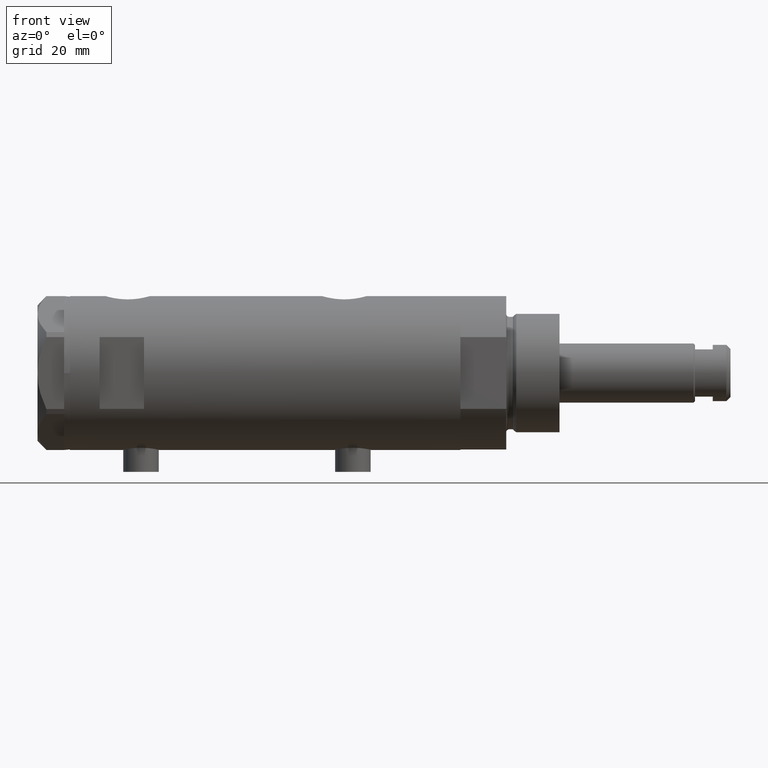
[diagram: clean part render]
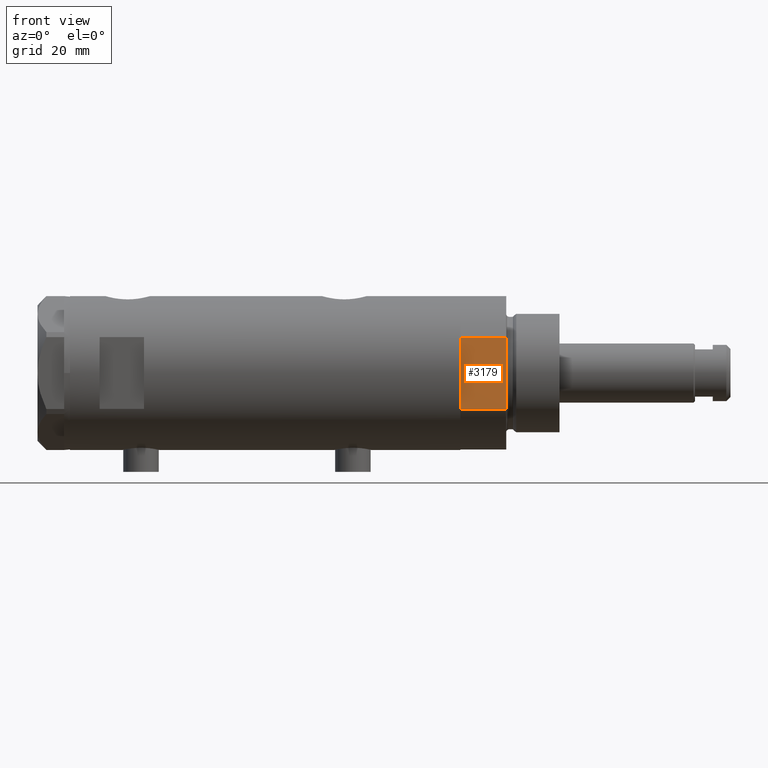
[diagram: same view with one face highlighted and labeled with its STEP entity id]
A machine part, front view. The second image highlights one B-rep face of the part: STEP entity #3179.
In plain terms, the highlighted planar face has unit normal (-0, 1, 0).
Its self-contained STEP definition (entity closure, byte-faithful):
#247 = PLANE ( 'NONE',  #3980 ) ;
#371 = DIRECTION ( 'NONE',  ( -0.000000000000000000, -0.000000000000000000, 1.000000000000000000 ) ) ;
#580 = DIRECTION ( 'NONE',  ( -1.000000000000000000, -0.000000000000000000, -0.000000000000000000 ) ) ;
#599 = EDGE_CURVE ( 'NONE', #3406, #2448, #4868, .T. ) ;
#1063 = ORIENTED_EDGE ( 'NONE', *, *, #3476, .T. ) ;
#1083 = CARTESIAN_POINT ( 'NONE',  ( -12.12435565298215145, -22.99999999999999645, 0.000000000000000000 ) ) ;
#1142 = DIRECTION ( 'NONE',  ( 0.000000000000000000, -0.000000000000000000, 1.000000000000000000 ) ) ;
#1465 = ORIENTED_EDGE ( 'NONE', *, *, #5181, .F. ) ;
#1531 = DIRECTION ( 'NONE',  ( -0.000000000000000000, 1.000000000000000000, 0.000000000000000000 ) ) ;
#1618 = VECTOR ( 'NONE', #371, 1000.000000000000000 ) ;
#1985 = CARTESIAN_POINT ( 'NONE',  ( 12.12435565298215323, -22.99999999999999645, 0.000000000000000000 ) ) ;
#2131 = DIRECTION ( 'NONE',  ( -1.000000000000000000, -0.000000000000000000, -0.000000000000000000 ) ) ;
#2132 = CARTESIAN_POINT ( 'NONE',  ( -12.12435565298215501, -22.99999999999999645, 0.000000000000000000 ) ) ;
#2312 = VECTOR ( 'NONE', #4709, 1000.000000000000000 ) ;
#2396 = LINE ( 'NONE', #3920, #3903 ) ;
#2448 = VERTEX_POINT ( 'NONE', #2772 ) ;
#2651 = CARTESIAN_POINT ( 'NONE',  ( -12.12435565298215145, -22.99999999999999645, 15.50000000000000000 ) ) ;
#2738 = CARTESIAN_POINT ( 'NONE',  ( 12.12435565298215323, -22.99999999999999645, 0.000000000000000000 ) ) ;
#2772 = CARTESIAN_POINT ( 'NONE',  ( -12.12435565298215323, -22.99999999999999645, 15.50000000000000000 ) ) ;
#2975 = ORIENTED_EDGE ( 'NONE', *, *, #4276, .T. ) ;
#3179 = ADVANCED_FACE ( 'NONE', ( #3529 ), #247, .F. ) ;
#3267 = EDGE_LOOP ( 'NONE', ( #2975, #4028, #1465, #1063 ) ) ;
#3328 = LINE ( 'NONE', #2651, #4163 ) ;
#3400 = CARTESIAN_POINT ( 'NONE',  ( 12.12435565298215323, -22.99999999999999645, 15.50000000000000000 ) ) ;
#3406 = VERTEX_POINT ( 'NONE', #2132 ) ;
#3476 = EDGE_CURVE ( 'NONE', #4805, #5008, #4257, .T. ) ;
#3529 = FACE_OUTER_BOUND ( 'NONE', #3267, .T. ) ;
#3903 = VECTOR ( 'NONE', #2131, 1000.000000000000000 ) ;
#3920 = CARTESIAN_POINT ( 'NONE',  ( -12.12435565298215145, -22.99999999999999645, 0.000000000000000000 ) ) ;
#3980 = AXIS2_PLACEMENT_3D ( 'NONE', #1083, #1531, #1142 ) ;
#4028 = ORIENTED_EDGE ( 'NONE', *, *, #599, .F. ) ;
#4163 = VECTOR ( 'NONE', #580, 1000.000000000000000 ) ;
#4257 = LINE ( 'NONE', #2738, #2312 ) ;
#4276 = EDGE_CURVE ( 'NONE', #5008, #2448, #3328, .T. ) ;
#4709 = DIRECTION ( 'NONE',  ( -0.000000000000000000, -0.000000000000000000, 1.000000000000000000 ) ) ;
#4787 = CARTESIAN_POINT ( 'NONE',  ( -12.12435565298215145, -22.99999999999999645, 0.000000000000000000 ) ) ;
#4805 = VERTEX_POINT ( 'NONE', #1985 ) ;
#4868 = LINE ( 'NONE', #4787, #1618 ) ;
#5008 = VERTEX_POINT ( 'NONE', #3400 ) ;
#5181 = EDGE_CURVE ( 'NONE', #4805, #3406, #2396, .T. ) ;